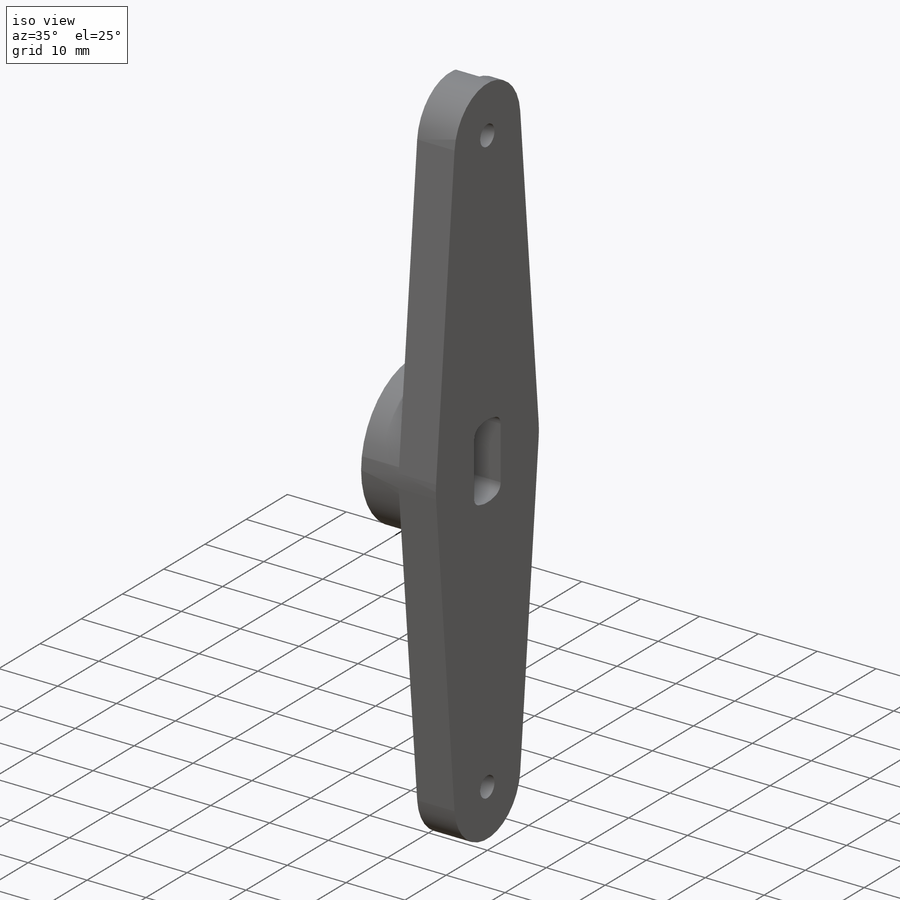
[diagram: iso view]
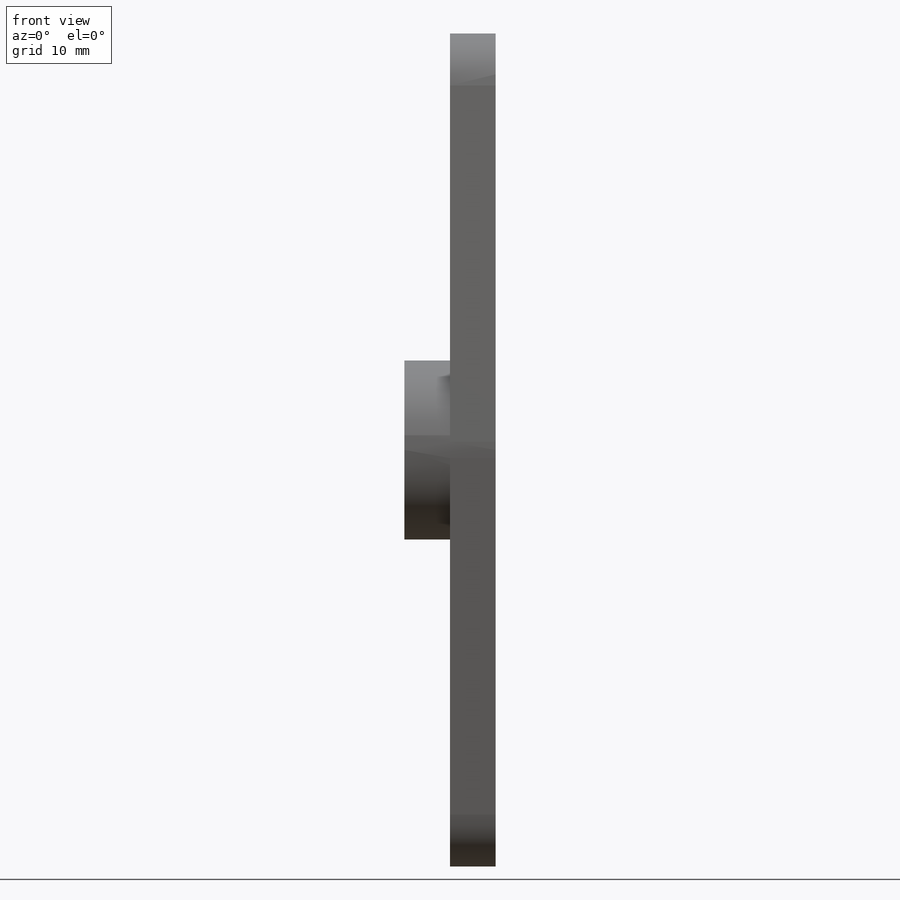
[diagram: front view]
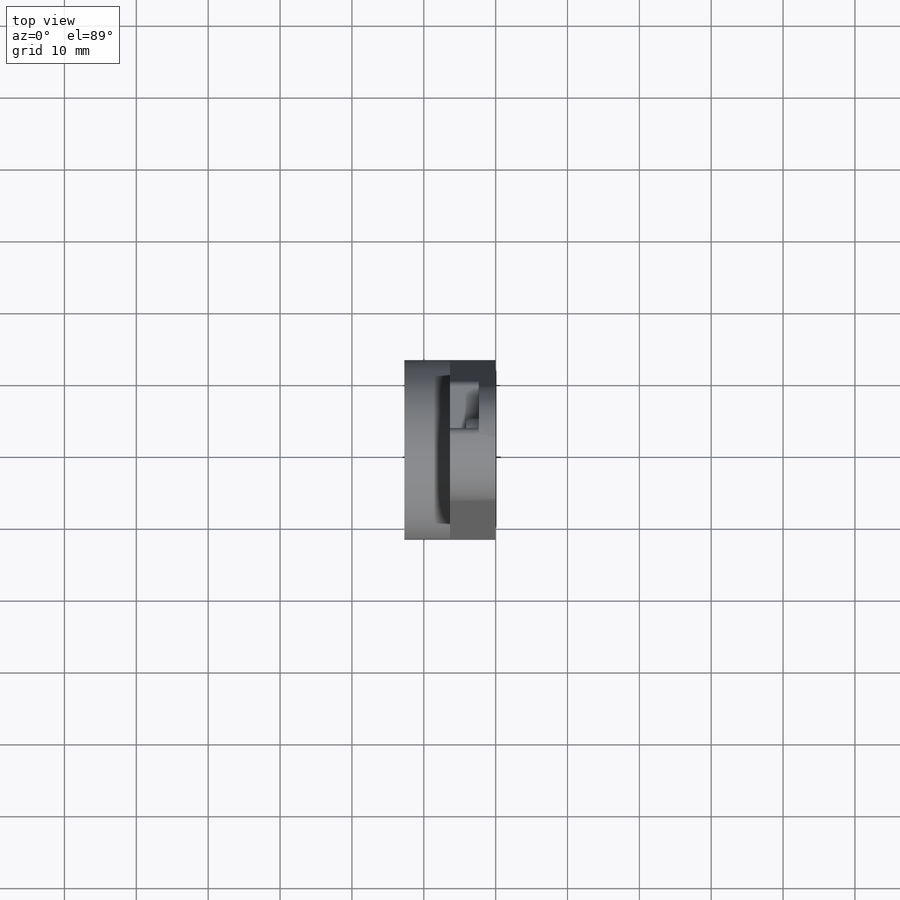
[diagram: top view]
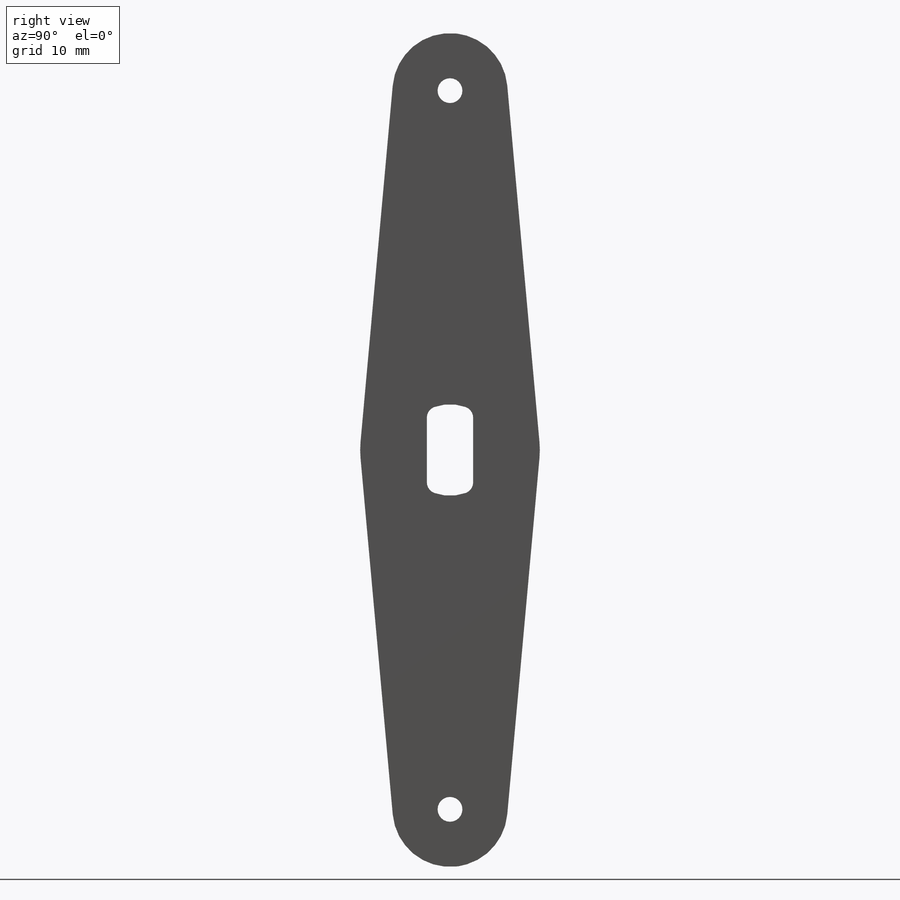
[diagram: right view]
SOLIDWORKS PART (.sldprt)
format: sldprt  version: not decoded by parser v0  size: 307,712 bytes
history: native  units: mm
features: sketch x9, cut_extrude x3, fillet x3, extrude x2, mirror x2, material x1, hole x1, thread x1 (+11 scaffold rows collapsed)
feature tree (33):
  scaffold x11  (default folders/planes/origin — collapsed)
  material  "6061-T6 (SS)"
  sketch  "Sketch1"  dims[D1=12.7254mm D2=10.5mm D4=25.0mm D5=7.0mm D6=16.0mm D3=50.0mm]
  sketch  "Sketch2"
  extrude  "Boss-Extrude1"  Depth=6.35mm
  sketch  "Sketch3"  dims[c1.D1=~6.214012mm c2.D1=18.0deg c2.D2=~14.093185mm c3.D2=18.0deg]
  cut_extrude  "Cut-Extrude1"  Depth=4mm
  fillet  "Fillet1"  Radius=1mm
  mirror  "Mirror1"
  sketch  "Sketch4"
  extrude  "Boss-Extrude2"  Depth=6.35mm
  sketch  "Sketch5"  dims[D1=6.4516mm]
  cut_extrude  "Cut-Extrude2"  [1 undecoded]
  fillet  "Fillet2"  Radius=1mm
  fillet  "Fillet3"  Radius=1.5875mm
  sketch  "Sketch6"  dims[D1=11.1125mm D2=5.08mm]
  sketch  "Sketch9"  dims[D1=0.0mm]
  cut_extrude  "Cut-Extrude3"  Depth=2.2mm
  hole  "#8-32 Tapped Hole1"  Diameter=3.4544mm Depth=12.29mm
  sketch  "Sketch8"
  sketch  "Sketch7"  dims[hole-wizard template sketch: 47 standard entries collapsed; hole parameters kept: c15.Tap Drill Depth=12.29mm c15.D3=~14.816244mm c15.Drill Angle=118.0deg]
  thread  "Hole Thread1"  Diameter=6.35mm  [1 undecoded]
  mirror  "Mirror2"
decode coverage: 15 of 21 modeling features carry decoded parameters
note: ~ marks probable driven/reference dimensions
note: 2 parameter values undecoded
note: suppression state not decoded; provenance and decode notes live in map.json
